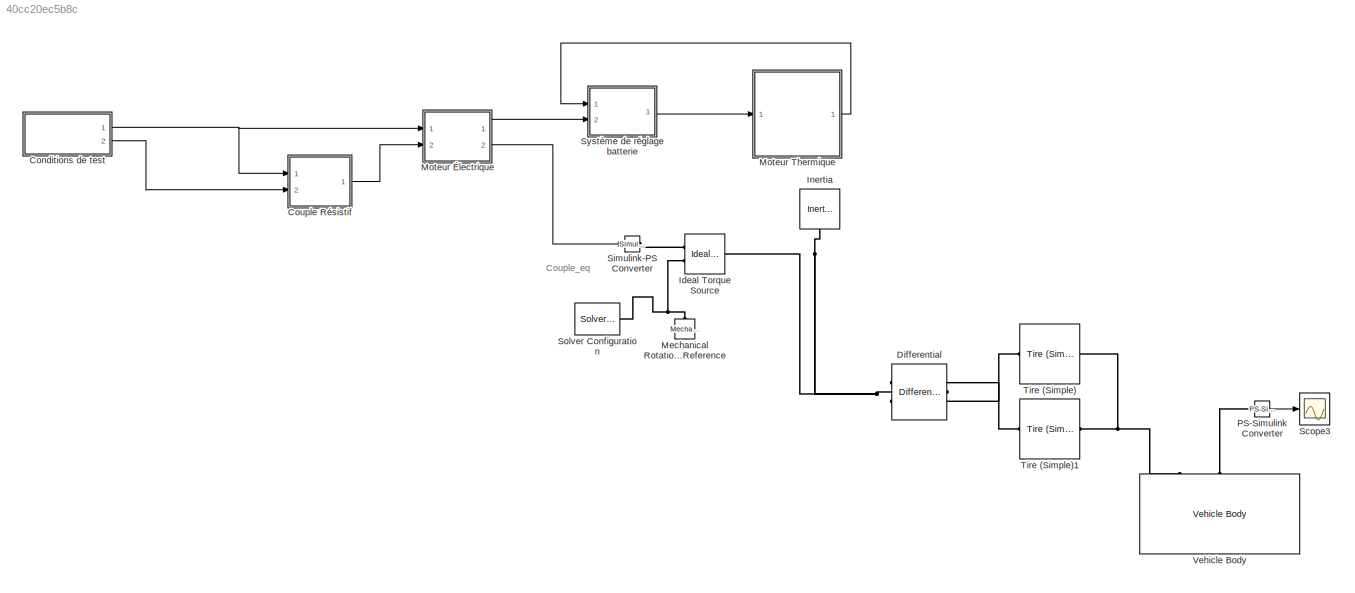
MODEL slx_40cc20ec5b8c
KIND model
CONFIG AbsTol = auto
CONFIG EnableMultiTasking = on
CONFIG FixedStep = auto
CONFIG InitFcn = % Modelisation de la Machine Synchrone\n\n% Constantes\n\nRs = 0.001;\nRdd = 0.01 ;\nRdq = Rdd ;\nRf = 7 ;\nLd = 1.59e-2 ;\nLq = Ld ;\nLf = 7 ;\nLdd = 7e-4 ;\nLdq = Ldd ;\nMaf = 0.259 ;\nMadd = 2.5e-3 ;\nMadq = Madd ;\nMfdd = 6.8e-2 ; \nnpp = 2 ;\nJ = 0.1 ;\n\nm = 1.8e3;\ng = 9.81;\nCr = 0.3;\nrho = 1.225;\nS = 2.25;\ntau = 9.65;\nCx = 0.3;\nRw = 24.13e-2;\n\nJeq = 1;\nfeq = 1;\n\nK = 0.5;\nphi = 0.5;\n\nw = 2*pi*50 ;\n\nOmega = w/np...<+867ch>
CONFIG MaxStep = auto
CONFIG MinStep = auto
CONFIG RelTol = auto
CONFIG SampleTimeConstraint = Unconstrained
CONFIG Solver = VariableStepAuto
CONFIG SolverName = VariableStepAuto
CONFIG StartTime = 0.0
CONFIG StopTime = 20
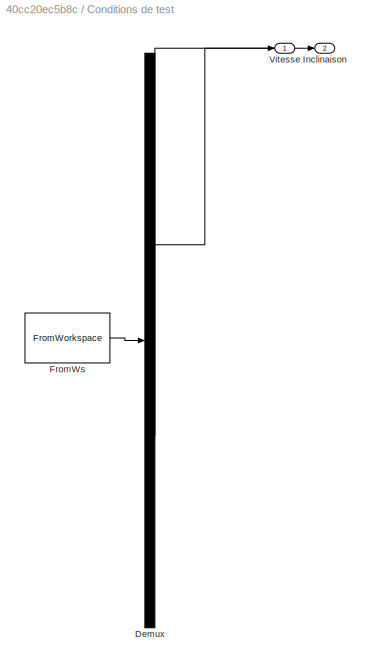
BLOCK [SubSystem] Conditions de test
  ClipboardFcn = sigbuilder_block('clipboard');
  CloseFcn = sigbuilder_block('close');
  ContinueFcn = sigbuilder_block('continue');
  CopyFcn = sigbuilder_block('copy');
  DeleteFcn = sigbuilder_block('delete');
  LoadFcn = sigbuilder_block('load');
  MaskHideContents = on
  ModelCloseFcn = sigbuilder_block('modelClose');
  NameChangeFcn = sigbuilder_block('namechange');
  OpenFcn = sigbuilder_block('open',[0 0 1396 804 ]);
  PauseFcn = sigbuilder_block('pause');
  Ports = [0, 2]
  PreSaveFcn = sigbuilder_block('preSave');
  RequestExecContextInheritance = off
  StartFcn = sigbuilder_block('start');
  StopFcn = sigbuilder_block('stop');
  Tag = STV Subsys
BLOCK [Demux] Conditions de test/Demux
  Outputs = 2
  Ports = [1, 2]
  Tag = STV Demux
BLOCK [FromWorkspace] Conditions de test/FromWs
  SampleTime = 0
  Tag = STV FromWs
  VariableName = tuvar
  ZeroCross = on
BLOCK [Outport] Conditions de test/Inclinaison
  IconDisplay = Port number
  Port = 2
  Tag = STV Outport
BLOCK [Outport] Conditions de test/Vitesse
  IconDisplay = Port number
  Tag = STV Outport
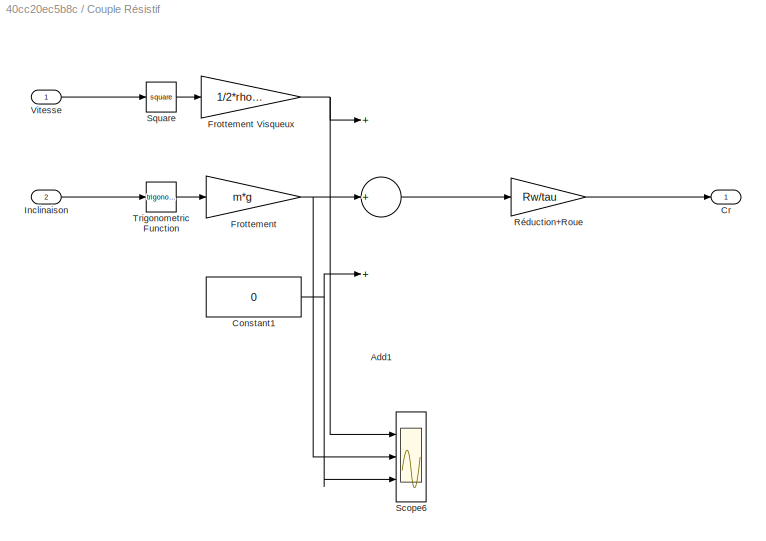
BLOCK [SubSystem] Couple Résistif
  Ports = [2, 1]
  RequestExecContextInheritance = off
BLOCK [Sum] Couple Résistif/Add1
  InputSameDT = off
  Inputs = +++
  OutDataTypeStr = Inherit: Inherit via internal rule
  Ports = [3, 1]
  SaturateOnIntegerOverflow = off
BLOCK [Constant] Couple Résistif/Constant1
  Value = 0
BLOCK [Outport] Couple Résistif/Cr
  IconDisplay = Port number
BLOCK [Gain] Couple Résistif/Frottement 
  Gain = m*g
  OutDataTypeStr = Inherit: Inherit via internal rule
  ParamDataTypeStr = Inherit: Inherit via internal rule
  SaturateOnIntegerOverflow = off
BLOCK [Gain] Couple Résistif/Frottement Visqueux
  Gain = 1/2*rho*Cx*S
  OutDataTypeStr = Inherit: Inherit via internal rule
  ParamDataTypeStr = Inherit: Inherit via internal rule
  SaturateOnIntegerOverflow = off
BLOCK [Inport] Couple Résistif/Inclinaison
  IconDisplay = Port number
  Port = 2
BLOCK [Gain] Couple Résistif/Réduction+Roue
  Gain = Rw/tau
  OutDataTypeStr = Inherit: Inherit via internal rule
  ParamDataTypeStr = Inherit: Inherit via internal rule
  SaturateOnIntegerOverflow = off
BLOCK [Scope] Couple Résistif/Scope6
  Floating = off
  NumInputPorts = 3
  Ports = [3]
  ScopeSpecificationString = Simulink.scopes.TimeScopeBlockCfg('CurrentConfiguration', extmgr.ConfigurationSet(extmgr.Configuration('Core','General UI',true),extmgr.Configuration('Core','Source UI',true),extmgr.Configuration('Sources','WiredSimulink',true,'DataLoggingVariableName','ScopeData4'),extmgr.Configuration('Visuals','Time Domain',true,'SerializedDisplays',{struct('MinYLimReal','-662.175','MaxYLimReal','5959.575','YLa...<+1456ch>
BLOCK [Math] Couple Résistif/Square
  Operator = square
  Ports = [1, 1]
  SignedPower = off
BLOCK [Trigonometry] Couple Résistif/Trigonometric Function
  Ports = [1, 1]
BLOCK [Inport] Couple Résistif/Vitesse
  IconDisplay = Port number
BLOCK [Reference] Differential  REF=sdl_lib/Gears/Differential
  Ports = [0, 0, 0, 0, 0, 1, 2]
  SourceBlock = sdl_lib/Gears/Differential
  SourceProductBaseCode = LD
  SourceProductName = Simscape Driveline
  SourceType = Differential
BLOCK [Reference] Ideal Torque Source  REF=fl_lib/Mechanical/Mechanical Sources/Ideal Torque Source
  Ports = [0, 0, 0, 0, 0, 1, 2]
  SourceBlock = fl_lib/Mechanical/Mechanical Sources/Ideal Torque Source
  SourceProductBaseCode = SS
  SourceProductName = Simscape
  SourceType = Ideal Torque Source
BLOCK [Reference] Inertia  REF=fl_lib/Mechanical/Rotational Elements/Inertia
  Ports = [0, 0, 0, 0, 0, 1]
  SourceBlock = fl_lib/Mechanical/Rotational Elements/Inertia
  SourceProductBaseCode = SS
  SourceProductName = Simscape
  SourceType = Inertia
BLOCK [Reference] Mechanical Rotational Reference  REF=fl_lib/Mechanical/Rotational Elements/Mechanical
Rotational Reference
  Ports = [0, 0, 0, 0, 0, 1]
  SourceBlock = fl_lib/Mechanical/Rotational Elements/Mechanical\nRotational Reference
  SourceProductBaseCode = SS
  SourceProductName = Simscape
  SourceType = Mechanical\nRotational Reference
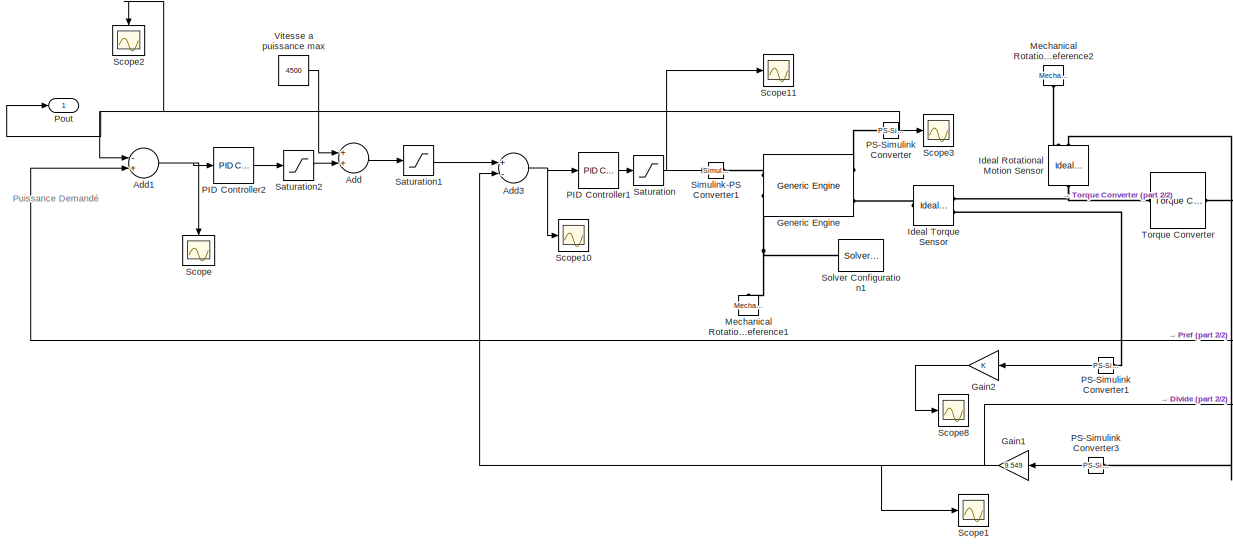
[diagram: Moteur Thermique - part 1/2, left side, full height]
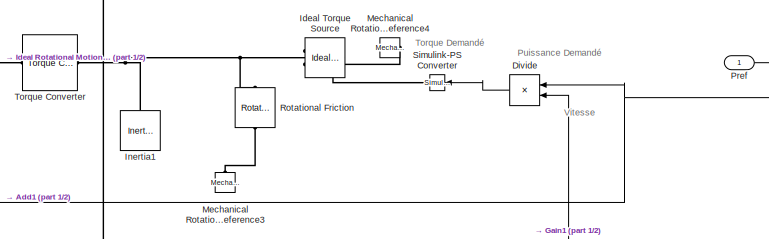
[diagram: Moteur Thermique - part 2/2, middle right region]
BLOCK [SubSystem] Moteur Thermique
  Ports = [1, 1]
  RequestExecContextInheritance = off
BLOCK [Sum] Moteur Thermique/Add
  InputSameDT = off
  OutDataTypeStr = Inherit: Inherit via internal rule
  Ports = [2, 1]
  SaturateOnIntegerOverflow = off
BLOCK [Sum] Moteur Thermique/Add1
  InputSameDT = off
  Inputs = -+
  OutDataTypeStr = Inherit: Inherit via internal rule
  Ports = [2, 1]
  SaturateOnIntegerOverflow = off
BLOCK [Sum] Moteur Thermique/Add3
  InputSameDT = off
  Inputs = +-
  OutDataTypeStr = Inherit: Inherit via internal rule
  Ports = [2, 1]
  SaturateOnIntegerOverflow = off
BLOCK [Product] Moteur Thermique/Divide
  InputSameDT = off
  Inputs = */
  OutDataTypeStr = Inherit: Inherit via internal rule
  Ports = [2, 1]
  RndMeth = Floor
  SaturateOnIntegerOverflow = off
BLOCK [Gain] Moteur Thermique/Gain1
  Gain = 9.549
  OutDataTypeStr = Inherit: Inherit via internal rule
  ParamDataTypeStr = Inherit: Inherit via internal rule
  SaturateOnIntegerOverflow = off
BLOCK [Gain] Moteur Thermique/Gain2
  OutDataTypeStr = Inherit: Inherit via internal rule
  ParamDataTypeStr = Inherit: Inherit via internal rule
  SaturateOnIntegerOverflow = off
BLOCK [Reference] Moteur Thermique/Generic Engine  REF=sdl_lib/Engines/Generic Engine
  Ports = [0, 0, 0, 0, 0, 2, 3]
  SourceBlock = sdl_lib/Engines/Generic Engine
  SourceProductBaseCode = LD
  SourceProductName = Simscape Driveline
  SourceType = Generic Engine
BLOCK [Reference] Moteur Thermique/Ideal Rotational Motion Sensor  REF=fl_lib/Mechanical/Mechanical Sensors/Ideal Rotational
Motion Sensor
  Ports = [0, 0, 0, 0, 0, 1, 3]
  SourceBlock = fl_lib/Mechanical/Mechanical Sensors/Ideal Rotational\nMotion Sensor
  SourceProductBaseCode = SS
  SourceProductName = Simscape
  SourceType = Ideal Rotational\nMotion Sensor
BLOCK [Reference] Moteur Thermique/Ideal Torque Sensor  REF=fl_lib/Mechanical/Mechanical Sensors/Ideal Torque Sensor
  Ports = [0, 0, 0, 0, 0, 1, 2]
  SourceBlock = fl_lib/Mechanical/Mechanical Sensors/Ideal Torque Sensor
  SourceProductBaseCode = SS
  SourceProductName = Simscape
  SourceType = Ideal Torque Sensor
BLOCK [Reference] Moteur Thermique/Ideal Torque Source  REF=fl_lib/Mechanical/Mechanical Sources/Ideal Torque Source
  Ports = [0, 0, 0, 0, 0, 1, 2]
  SourceBlock = fl_lib/Mechanical/Mechanical Sources/Ideal Torque Source
  SourceProductBaseCode = SS
  SourceProductName = Simscape
  SourceType = Ideal Torque Source
BLOCK [Reference] Moteur Thermique/Inertia1  REF=fl_lib/Mechanical/Rotational Elements/Inertia
  Ports = [0, 0, 0, 0, 0, 1]
  SourceBlock = fl_lib/Mechanical/Rotational Elements/Inertia
  SourceProductBaseCode = SS
  SourceProductName = Simscape
  SourceType = Inertia
BLOCK [Reference] Moteur Thermique/Mechanical Rotational Reference1  REF=fl_lib/Mechanical/Rotational Elements/Mechanical
Rotational Reference
  Ports = [0, 0, 0, 0, 0, 1]
  SourceBlock = fl_lib/Mechanical/Rotational Elements/Mechanical\nRotational Reference
  SourceProductBaseCode = SS
  SourceProductName = Simscape
  SourceType = Mechanical\nRotational Reference
BLOCK [Reference] Moteur Thermique/Mechanical Rotational Reference2  REF=fl_lib/Mechanical/Rotational Elements/Mechanical
Rotational Reference
  Ports = [0, 0, 0, 0, 0, 1]
  SourceBlock = fl_lib/Mechanical/Rotational Elements/Mechanical\nRotational Reference
  SourceProductBaseCode = SS
  SourceProductName = Simscape
  SourceType = Mechanical\nRotational Reference
BLOCK [Reference] Moteur Thermique/Mechanical Rotational Reference3  REF=fl_lib/Mechanical/Rotational Elements/Mechanical
Rotational Reference
  Ports = [0, 0, 0, 0, 0, 1]
  SourceBlock = fl_lib/Mechanical/Rotational Elements/Mechanical\nRotational Reference
  SourceProductBaseCode = SS
  SourceProductName = Simscape
  SourceType = Mechanical\nRotational Reference
BLOCK [Reference] Moteur Thermique/Mechanical Rotational Reference4  REF=fl_lib/Mechanical/Rotational Elements/Mechanical
Rotational Reference
  Ports = [0, 0, 0, 0, 0, 1]
  SourceBlock = fl_lib/Mechanical/Rotational Elements/Mechanical\nRotational Reference
  SourceProductBaseCode = SS
  SourceProductName = Simscape
  SourceType = Mechanical\nRotational Reference
BLOCK [Reference] Moteur Thermique/PID Controller1  REF=simulink/Continuous/PID Controller
  Ports = [1, 1]
  SourceBlock = simulink/Continuous/PID Controller
  SourceProductBaseCode = SL
  SourceProductName = Simulink
  SourceType = PID 1dof
BLOCK [Reference] Moteur Thermique/PID Controller2  REF=simulink/Continuous/PID Controller
  Ports = [1, 1]
  SourceBlock = simulink/Continuous/PID Controller
  SourceProductBaseCode = SL
  SourceProductName = Simulink
  SourceType = PID 1dof
BLOCK [Reference] Moteur Thermique/PS-Simulink Converter  REF=nesl_utility/PS-Simulink
Converter
  Ports = [0, 1, 0, 0, 0, 1]
  SourceBlock = nesl_utility/PS-Simulink\nConverter
  SourceProductBaseCode = SS
  SourceProductName = Simscape
  SourceType = PS-Simulink\nConverter
BLOCK [Reference] Moteur Thermique/PS-Simulink Converter1  REF=nesl_utility/PS-Simulink
Converter
  Ports = [0, 1, 0, 0, 0, 1]
  SourceBlock = nesl_utility/PS-Simulink\nConverter
  SourceProductBaseCode = SS
  SourceProductName = Simscape
  SourceType = PS-Simulink\nConverter
BLOCK [Reference] Moteur Thermique/PS-Simulink Converter3  REF=nesl_utility/PS-Simulink
Converter
  Ports = [0, 1, 0, 0, 0, 1]
  SourceBlock = nesl_utility/PS-Simulink\nConverter
  SourceProductBaseCode = SS
  SourceProductName = Simscape
  SourceType = PS-Simulink\nConverter
BLOCK [Outport] Moteur Thermique/Pout
  IconDisplay = Port number
BLOCK [Inport] Moteur Thermique/Pref
  IconDisplay = Port number
BLOCK [Reference] Moteur Thermique/Rotational Friction  REF=fl_lib/Mechanical/Rotational Elements/Rotational Friction
  Ports = [0, 0, 0, 0, 0, 1, 1]
  SourceBlock = fl_lib/Mechanical/Rotational Elements/Rotational Friction
  SourceProductBaseCode = SS
  SourceProductName = Simscape
  SourceType = Rotational Friction
BLOCK [Saturate] Moteur Thermique/Saturation
  InputPortMap = u0
  LowerLimit = 0
  Ports = [1, 1]
  UpperLimit = 1
BLOCK [Saturate] Moteur Thermique/Saturation1
  InputPortMap = u0
  LowerLimit = 0
  Ports = [1, 1]
  UpperLimit = 6999
BLOCK [Saturate] Moteur Thermique/Saturation2
  InputPortMap = u0
  LowerLimit = -4500
  Ports = [1, 1]
  UpperLimit = 0
BLOCK [Scope] Moteur Thermique/Scope
  Floating = off
  NumInputPorts = 1
  Ports = [1]
  ScopeSpecificationString = Simulink.scopes.TimeScopeBlockCfg('CurrentConfiguration', extmgr.ConfigurationSet(extmgr.Configuration('Core','General UI',true),extmgr.Configuration('Core','Source UI',true),extmgr.Configuration('Sources','WiredSimulink',true,'DataLoggingVariableName','ScopeData1'),extmgr.Configuration('Visuals','Time Domain',true,'SerializedDisplays',{struct('MinYLimReal','-35104.48962','MaxYLimReal','10294.2759...<+1445ch>
BLOCK [Scope] Moteur Thermique/Scope1
  Floating = off
  NumInputPorts = 1
  Ports = [1]
  ScopeSpecificationString = Simulink.scopes.TimeScopeBlockCfg('CurrentConfiguration', extmgr.ConfigurationSet(extmgr.Configuration('Core','General UI',true),extmgr.Configuration('Core','Source UI',true),extmgr.Configuration('Sources','WiredSimulink',true,'DataLoggingVariableName','ScopeData2'),extmgr.Configuration('Visuals','Time Domain',true,'SerializedDisplays',{struct('MinYLimReal','329.98178','MaxYLimReal','4962.61995','...<+1455ch>
BLOCK [Scope] Moteur Thermique/Scope10
  Floating = off
  NumInputPorts = 1
  Ports = [1]
  ScopeSpecificationString = Simulink.scopes.TimeScopeBlockCfg('CurrentConfiguration', extmgr.ConfigurationSet(extmgr.Configuration('Core','General UI',true),extmgr.Configuration('Core','Source UI',true),extmgr.Configuration('Sources','WiredSimulink',true,'DataLoggingVariableName','ScopeData3'),extmgr.Configuration('Visuals','Time Domain',true,'SerializedDisplays',{struct('MinYLimReal','-118.36075','MaxYLimReal','370.98356','...<+1421ch>
BLOCK [Scope] Moteur Thermique/Scope11
  Floating = off
  NumInputPorts = 1
  Ports = [1]
  ScopeSpecificationString = Simulink.scopes.TimeScopeBlockCfg('CurrentConfiguration', extmgr.ConfigurationSet(extmgr.Configuration('Core','General UI',true),extmgr.Configuration('Core','Source UI',true),extmgr.Configuration('Sources','WiredSimulink',true,'DataLoggingVariableName','ScopeData4'),extmgr.Configuration('Visuals','Time Domain',true,'SerializedDisplays',{struct('MinYLimReal','-0.125','MaxYLimReal','1.125','YLabelRe...<+1440ch>
BLOCK [Scope] Moteur Thermique/Scope2
  Floating = off
  NumInputPorts = 1
  Ports = [1]
  ScopeSpecificationString = Simulink.scopes.TimeScopeBlockCfg('CurrentConfiguration', extmgr.ConfigurationSet(extmgr.Configuration('Core','General UI',true),extmgr.Configuration('Core','Source UI',true),extmgr.Configuration('Sources','WiredSimulink',true,'DataLoggingVariableName','ScopeData1'),extmgr.Configuration('Visuals','Time Domain',true,'SerializedDisplays',{struct('MinYLimReal','-1.00000','MaxYLimReal','1.00000','YLab...<+1432ch>
BLOCK [Scope] Moteur Thermique/Scope3
  Floating = off
  NumInputPorts = 1
  Ports = [1]
  ScopeSpecificationString = Simulink.scopes.TimeScopeBlockCfg('CurrentConfiguration', extmgr.ConfigurationSet(extmgr.Configuration('Core','General UI',true),extmgr.Configuration('Core','Source UI',true),extmgr.Configuration('Sources','WiredSimulink',true,'DataLoggingVariableName','ScopeData5'),extmgr.Configuration('Visuals','Time Domain',true,'SerializedDisplays',{struct('MinYLimReal','-3820.57663','MaxYLimReal','34385.18969...<+1514ch>
BLOCK [Scope] Moteur Thermique/Scope8
  Floating = off
  NumInputPorts = 1
  Ports = [1]
  ScopeSpecificationString = Simulink.scopes.TimeScopeBlockCfg('CurrentConfiguration', extmgr.ConfigurationSet(extmgr.Configuration('Core','General UI',true),extmgr.Configuration('Core','Source UI',true),extmgr.Configuration('Sources','WiredSimulink',true),extmgr.Configuration('Visuals','Time Domain',true,'SerializedDisplays',{struct('MinYLimReal','-0.14958','MaxYLimReal','0.09552','YLabelReal','','MinYLimMag','0.00000','MaxY...<+1373ch>
BLOCK [Reference] Moteur Thermique/Simulink-PS Converter  REF=nesl_utility/Simulink-PS
Converter
  Ports = [1, 0, 0, 0, 0, 0, 1]
  SourceBlock = nesl_utility/Simulink-PS\nConverter
  SourceProductBaseCode = SS
  SourceProductName = Simscape
  SourceType = Simulink-PS\nConverter
BLOCK [Reference] Moteur Thermique/Simulink-PS Converter1  REF=nesl_utility/Simulink-PS
Converter
  Ports = [1, 0, 0, 0, 0, 0, 1]
  SourceBlock = nesl_utility/Simulink-PS\nConverter
  SourceProductBaseCode = SS
  SourceProductName = Simscape
  SourceType = Simulink-PS\nConverter
BLOCK [Reference] Moteur Thermique/Solver Configuration1  REF=nesl_utility/Solver
Configuration
  Ports = [0, 0, 0, 0, 0, 0, 1]
  SourceBlock = nesl_utility/Solver\nConfiguration
  SourceProductBaseCode = SS
  SourceProductName = Simscape
  SourceType = Solver\nConfiguration
BLOCK [Reference] Moteur Thermique/Torque Converter  REF=sdl_lib/Couplings & Drives/Torque Converter
  Ports = [0, 0, 0, 0, 0, 1, 1]
  SourceBlock = sdl_lib/Couplings & Drives/Torque Converter
  SourceProductBaseCode = LD
  SourceProductName = Simscape Driveline
  SourceType = Torque Converter
BLOCK [Constant] Moteur Thermique/Vitesse a puissance max
  Value = 4500
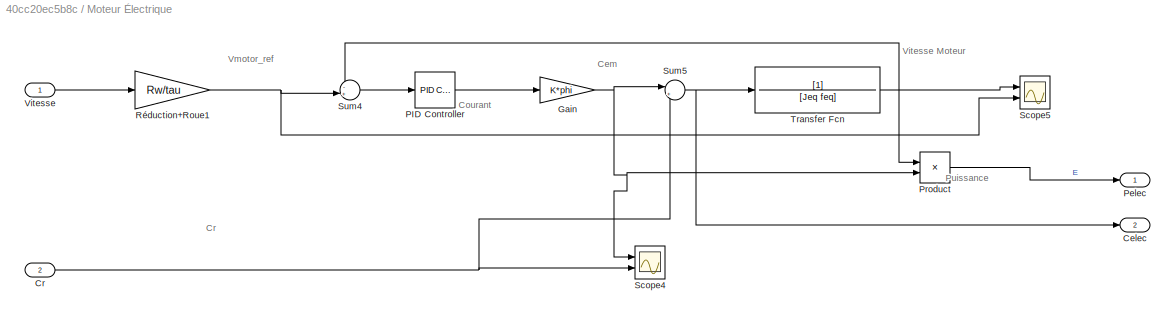
BLOCK [SubSystem] Moteur Électrique
  Ports = [2, 2]
  RequestExecContextInheritance = off
BLOCK [Outport] Moteur Électrique/Celec
  IconDisplay = Port number
  Port = 2
BLOCK [Inport] Moteur Électrique/Cr
  IconDisplay = Port number
  Port = 2
BLOCK [Gain] Moteur Électrique/Gain
  Gain = K*phi
  OutDataTypeStr = Inherit: Inherit via internal rule
  ParamDataTypeStr = Inherit: Inherit via internal rule
  SaturateOnIntegerOverflow = off
BLOCK [Reference] Moteur Électrique/PID Controller  REF=simulink/Continuous/PID Controller
  Ports = [1, 1]
  SourceBlock = simulink/Continuous/PID Controller
  SourceProductBaseCode = SL
  SourceProductName = Simulink
  SourceType = PID 1dof
BLOCK [Outport] Moteur Électrique/Pelec
  IconDisplay = Port number
BLOCK [Product] Moteur Électrique/Product
  InputSameDT = off
  OutDataTypeStr = Inherit: Inherit via internal rule
  Ports = [2, 1]
  RndMeth = Floor
  SaturateOnIntegerOverflow = off
BLOCK [Gain] Moteur Électrique/Réduction+Roue1
  Gain = Rw/tau
  OutDataTypeStr = Inherit: Inherit via internal rule
  ParamDataTypeStr = Inherit: Inherit via internal rule
  SaturateOnIntegerOverflow = off
BLOCK [Scope] Moteur Électrique/Scope4
  Floating = off
  NumInputPorts = 2
  Ports = [2]
  ScopeSpecificationString = Simulink.scopes.TimeScopeBlockCfg('CurrentConfiguration', extmgr.ConfigurationSet(extmgr.Configuration('Core','General UI',true),extmgr.Configuration('Core','Source UI',true),extmgr.Configuration('Sources','WiredSimulink',true,'DataLoggingVariableName','ScopeData2'),extmgr.Configuration('Visuals','Time Domain',true,'SerializedDisplays',{struct('MinYLimReal','-0.90449','MaxYLimReal','8.14043','YLab...<+1425ch>
BLOCK [Scope] Moteur Électrique/Scope5
  Floating = off
  NumInputPorts = 2
  Ports = [2]
  ScopeSpecificationString = Simulink.scopes.TimeScopeBlockCfg('CurrentConfiguration', extmgr.ConfigurationSet(extmgr.Configuration('Core','General UI',true),extmgr.Configuration('Core','Source UI',true),extmgr.Configuration('Sources','WiredSimulink',true,'DataLoggingVariableName','ScopeData3'),extmgr.Configuration('Visuals','Time Domain',true,'SerializedDisplays',{struct('MinYLimReal','-0.07814','MaxYLimReal','0.70327','YLab...<+1434ch>
BLOCK [Sum] Moteur Électrique/Sum4
  IconShape = round
  InputSameDT = off
  Inputs = -+|
  OutDataTypeStr = Inherit: Inherit via internal rule
  Ports = [2, 1]
BLOCK [Sum] Moteur Électrique/Sum5
  IconShape = round
  InputSameDT = off
  Inputs = |+-
  OutDataTypeStr = Inherit: Inherit via internal rule
  Ports = [2, 1]
BLOCK [TransferFcn] Moteur Électrique/Transfer Fcn
  Denominator = [Jeq feq]
BLOCK [Inport] Moteur Électrique/Vitesse
  IconDisplay = Port number
BLOCK [Reference] PS-Simulink Converter  REF=nesl_utility/PS-Simulink
Converter
  Ports = [0, 1, 0, 0, 0, 1]
  SourceBlock = nesl_utility/PS-Simulink\nConverter
  SourceProductBaseCode = SS
  SourceProductName = Simscape
  SourceType = PS-Simulink\nConverter
BLOCK [Scope] Scope3
  Floating = off
  NumInputPorts = 1
  Ports = [1]
  ScopeSpecificationString = Simulink.scopes.TimeScopeBlockCfg('CurrentConfiguration', extmgr.ConfigurationSet(extmgr.Configuration('Core','General UI',true),extmgr.Configuration('Core','Source UI',true),extmgr.Configuration('Sources','WiredSimulink',true,'DataLoggingVariableName','ScopeData1'),extmgr.Configuration('Visuals','Time Domain',true,'SerializedDisplays',{struct('MinYLimReal','-0.01644','MaxYLimReal','0.148','YLabel...<+1398ch>
BLOCK [Reference] Simulink-PS Converter  REF=nesl_utility/Simulink-PS
Converter
  Ports = [1, 0, 0, 0, 0, 0, 1]
  SourceBlock = nesl_utility/Simulink-PS\nConverter
  SourceProductBaseCode = SS
  SourceProductName = Simscape
  SourceType = Simulink-PS\nConverter
BLOCK [Reference] Solver Configuration  REF=nesl_utility/Solver
Configuration
  Ports = [0, 0, 0, 0, 0, 0, 1]
  SourceBlock = nesl_utility/Solver\nConfiguration
  SourceProductBaseCode = SS
  SourceProductName = Simscape
  SourceType = Solver\nConfiguration
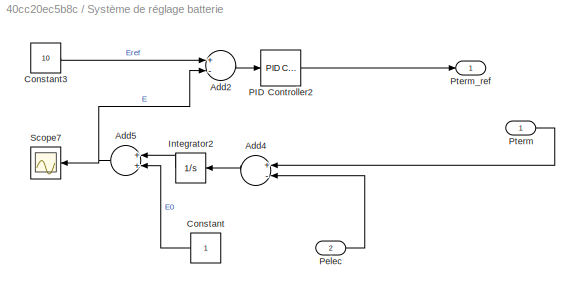
BLOCK [SubSystem] Système de réglage batterie
  Ports = [2, 1]
  RequestExecContextInheritance = off
BLOCK [Sum] Système de réglage batterie/Add2
  InputSameDT = off
  Inputs = +-
  OutDataTypeStr = Inherit: Inherit via internal rule
  Ports = [2, 1]
  SaturateOnIntegerOverflow = off
BLOCK [Sum] Système de réglage batterie/Add4
  InputSameDT = off
  Inputs = +-
  OutDataTypeStr = Inherit: Inherit via internal rule
  Ports = [2, 1]
  SaturateOnIntegerOverflow = off
BLOCK [Sum] Système de réglage batterie/Add5
  InputSameDT = off
  OutDataTypeStr = Inherit: Inherit via internal rule
  Ports = [2, 1]
  SaturateOnIntegerOverflow = off
BLOCK [Constant] Système de réglage batterie/Constant
BLOCK [Constant] Système de réglage batterie/Constant3
  Value = 10
BLOCK [Integrator] Système de réglage batterie/Integrator2
  Ports = [1, 1]
BLOCK [Reference] Système de réglage batterie/PID Controller2  REF=simulink/Continuous/PID Controller
  Ports = [1, 1]
  SourceBlock = simulink/Continuous/PID Controller
  SourceProductBaseCode = SL
  SourceProductName = Simulink
  SourceType = PID 1dof
BLOCK [Inport] Système de réglage batterie/Pelec
  IconDisplay = Port number
  Port = 2
BLOCK [Inport] Système de réglage batterie/Pterm
  IconDisplay = Port number
BLOCK [Outport] Système de réglage batterie/Pterm_ref
  IconDisplay = Port number
BLOCK [Scope] Système de réglage batterie/Scope7
  Floating = off
  NumInputPorts = 1
  Ports = [1]
  ScopeSpecificationString = Simulink.scopes.TimeScopeBlockCfg('CurrentConfiguration', extmgr.ConfigurationSet(extmgr.Configuration('Core','General UI',true),extmgr.Configuration('Core','Source UI',true),extmgr.Configuration('Sources','WiredSimulink',true,'DataLoggingVariableName','ScopeData5'),extmgr.Configuration('Visuals','Time Domain',true,'SerializedDisplays',{struct('MinYLimReal','-84.00896','MaxYLimReal','10.44544','YL...<+1366ch>
BLOCK [Reference] Tire (Simple)  REF=sdl_lib/Tires & Vehicles/Tire (Simple)
  Ports = [0, 0, 0, 0, 0, 1, 1]
  SourceBlock = sdl_lib/Tires & Vehicles/Tire (Simple)
  SourceProductBaseCode = LD
  SourceProductName = Simscape Driveline
  SourceType = Tire (Simple)
BLOCK [Reference] Tire (Simple)1  REF=sdl_lib/Tires & Vehicles/Tire (Simple)
  Ports = [0, 0, 0, 0, 0, 1, 1]
  SourceBlock = sdl_lib/Tires & Vehicles/Tire (Simple)
  SourceProductBaseCode = LD
  SourceProductName = Simscape Driveline
  SourceType = Tire (Simple)
BLOCK [Reference] Vehicle Body  REF=sdl_lib/Tires & Vehicles/Vehicle Body
  Ports = [0, 0, 0, 0, 0, 3, 3]
  SourceBlock = sdl_lib/Tires & Vehicles/Vehicle Body
  SourceProductBaseCode = LD
  SourceProductName = Simscape Driveline
  SourceType = Vehicle Body
ANNOTATION (root): Couple_eq
ANNOTATION Moteur Thermique: Puissance Demandé
ANNOTATION Moteur Thermique: Torque Demandé
ANNOTATION Moteur Thermique: Vitesse
ANNOTATION Moteur Électrique: Cem
ANNOTATION Moteur Électrique: Courant
ANNOTATION Moteur Électrique: Cr
ANNOTATION Moteur Électrique: Puissance
ANNOTATION Moteur Électrique: Vitesse Moteur
ANNOTATION Moteur Électrique: Vmotor_ref
NET Conditions de test:1 -> Couple Résistif:1, Moteur Électrique:1
LINE Conditions de test:2 -> Couple Résistif:2
LINE Couple Résistif/Add1:1 -> Couple Résistif/Réduction+Roue:1
NET Couple Résistif/Constant1:1 -> Couple Résistif/Add1:3, Couple Résistif/Scope6:3
NET Couple Résistif/Frottement :1 -> Couple Résistif/Add1:2, Couple Résistif/Scope6:2
NET Couple Résistif/Frottement Visqueux:1 -> Couple Résistif/Add1:1, Couple Résistif/Scope6:1
LINE Couple Résistif/Inclinaison:1 -> Couple Résistif/Trigonometric Function:1
LINE Couple Résistif/Réduction+Roue:1 -> Couple Résistif/Cr:1
LINE Couple Résistif/Square:1 -> Couple Résistif/Frottement Visqueux:1
LINE Couple Résistif/Trigonometric Function:1 -> Couple Résistif/Frottement :1
LINE Couple Résistif/Vitesse:1 -> Couple Résistif/Square:1
LINE Couple Résistif:1 -> Moteur Électrique:2
NET Moteur Thermique/Add1:1 -> Moteur Thermique/PID Controller2:1, Moteur Thermique/Scope:1
NET Moteur Thermique/Add3:1 -> Moteur Thermique/PID Controller1:1, Moteur Thermique/Scope10:1
LINE Moteur Thermique/Add:1 -> Moteur Thermique/Saturation1:1
LINE Moteur Thermique/Divide:1 -> Moteur Thermique/Simulink-PS Converter:1
NET Moteur Thermique/Gain1:1 -> Moteur Thermique/Add3:2, Moteur Thermique/Divide:2, Moteur Thermique/Scope1:1
LINE Moteur Thermique/Gain2:1 -> Moteur Thermique/Scope8:1
LINE Moteur Thermique/PID Controller1:1 -> Moteur Thermique/Saturation:1
LINE Moteur Thermique/PID Controller2:1 -> Moteur Thermique/Saturation2:1
LINE Moteur Thermique/PS-Simulink Converter1:1 -> Moteur Thermique/Gain2:1
LINE Moteur Thermique/PS-Simulink Converter3:1 -> Moteur Thermique/Gain1:1
NET Moteur Thermique/PS-Simulink Converter:1 -> Moteur Thermique/Add1:1, Moteur Thermique/Pout:1, Moteur Thermique/Scope2:1, Moteur Thermique/Scope3:1
NET Moteur Thermique/Pref:1 -> Moteur Thermique/Add1:2, Moteur Thermique/Divide:1
LINE Moteur Thermique/Saturation1:1 -> Moteur Thermique/Add3:1
LINE Moteur Thermique/Saturation2:1 -> Moteur Thermique/Add:2
NET Moteur Thermique/Saturation:1 -> Moteur Thermique/Scope11:1, Moteur Thermique/Simulink-PS Converter1:1
LINE Moteur Thermique/Vitesse a puissance max:1 -> Moteur Thermique/Add:1
LINE Moteur Thermique:1 -> Système de réglage batterie:1
NET Moteur Électrique/Cr:1 -> Moteur Électrique/Scope4:2, Moteur Électrique/Sum5:2
NET Moteur Électrique/Gain:1 -> Moteur Électrique/Product:2, Moteur Électrique/Scope4:1, Moteur Électrique/Sum5:1
LINE Moteur Électrique/PID Controller:1 -> Moteur Électrique/Gain:1
LINE Moteur Électrique/Product:1 -> Moteur Électrique/Pelec:1
NET Moteur Électrique/Réduction+Roue1:1 -> Moteur Électrique/Scope5:2, Moteur Électrique/Sum4:2
LINE Moteur Électrique/Sum4:1 -> Moteur Électrique/PID Controller:1
NET Moteur Électrique/Sum5:1 -> Moteur Électrique/Celec:1, Moteur Électrique/Transfer Fcn:1
NET Moteur Électrique/Transfer Fcn:1 -> Moteur Électrique/Product:1, Moteur Électrique/Scope5:1, Moteur Électrique/Sum4:1
LINE Moteur Électrique/Vitesse:1 -> Moteur Électrique/Réduction+Roue1:1
LINE Moteur Électrique:1 -> Système de réglage batterie:2
LINE Moteur Électrique:2 -> Simulink-PS Converter:1
LINE PS-Simulink Converter:1 -> Scope3:1
LINE Système de réglage batterie/Add2:1 -> Système de réglage batterie/PID Controller2:1
LINE Système de réglage batterie/Add4:1 -> Système de réglage batterie/Integrator2:1
NET Système de réglage batterie/Add5:1 -> Système de réglage batterie/Add2:2, Système de réglage batterie/Scope7:1
LINE Système de réglage batterie/Constant3:1 -> Système de réglage batterie/Add2:1
LINE Système de réglage batterie/Constant:1 -> Système de réglage batterie/Add5:2
LINE Système de réglage batterie/Integrator2:1 -> Système de réglage batterie/Add5:1
LINE Système de réglage batterie/PID Controller2:1 -> Système de réglage batterie/Pterm_ref:1
LINE Système de réglage batterie/Pelec:1 -> Système de réglage batterie/Add4:2
LINE Système de réglage batterie/Pterm:1 -> Système de réglage batterie/Add4:1
LINE Système de réglage batterie:1 -> Moteur Thermique:1
PNET net1: Differential:LConn1 -- Ideal Torque Source:LConn1 -- Inertia:LConn1
PLINE Differential:RConn1 -- Tire (Simple)1:LConn1
PLINE Differential:RConn2 -- Tire (Simple):LConn1
PLINE Ideal Torque Source:RConn1 -- Simulink-PS Converter:RConn1
PNET net2: Ideal Torque Source:RConn2 -- Mechanical Rotational Reference:LConn1 -- Solver Configuration:RConn1
PLINE Moteur Thermique/Generic Engine:LConn1 -- Moteur Thermique/Simulink-PS Converter1:RConn1
PNET net3: Moteur Thermique/Generic Engine:LConn2 -- Moteur Thermique/Mechanical Rotational Reference1:LConn1 -- Moteur Thermique/Solver Configuration1:RConn1
PLINE Moteur Thermique/Generic Engine:RConn1 -- Moteur Thermique/PS-Simulink Converter:LConn1
PLINE Moteur Thermique/Generic Engine:RConn3 -- Moteur Thermique/Ideal Torque Sensor:LConn1
PNET net4: Moteur Thermique/Ideal Rotational Motion Sensor:LConn1 -- Moteur Thermique/Ideal Torque Sensor:RConn1 -- Moteur Thermique/Torque Converter:LConn1
PLINE Moteur Thermique/Ideal Rotational Motion Sensor:RConn1 -- Moteur Thermique/Mechanical Rotational Reference2:LConn1
PLINE Moteur Thermique/Ideal Rotational Motion Sensor:RConn2 -- Moteur Thermique/PS-Simulink Converter3:LConn1
PLINE Moteur Thermique/Ideal Torque Sensor:RConn2 -- Moteur Thermique/PS-Simulink Converter1:LConn1
PNET net5: Moteur Thermique/Ideal Torque Source:LConn1 -- Moteur Thermique/Inertia1:LConn1 -- Moteur Thermique/Rotational Friction:LConn1 -- Moteur Thermique/Torque Converter:RConn1
PLINE Moteur Thermique/Ideal Torque Source:RConn1 -- Moteur Thermique/Simulink-PS Converter:RConn1
PLINE Moteur Thermique/Ideal Torque Source:RConn2 -- Moteur Thermique/Mechanical Rotational Reference4:LConn1
PLINE Moteur Thermique/Mechanical Rotational Reference3:LConn1 -- Moteur Thermique/Rotational Friction:RConn1
PLINE PS-Simulink Converter:LConn1 -- Vehicle Body:LConn2
PNET net6: Tire (Simple)1:RConn1 -- Tire (Simple):RConn1 -- Vehicle Body:LConn1
note: NET lines group one-source signal fan-out (src -> all destinations, sorted); 1:1 wires keep LINE; PNET lines group multi-terminal physical nets as a canonical sorted terminal list (undirected conserving connections); 2-terminal nets keep the pairwise PLINE form
